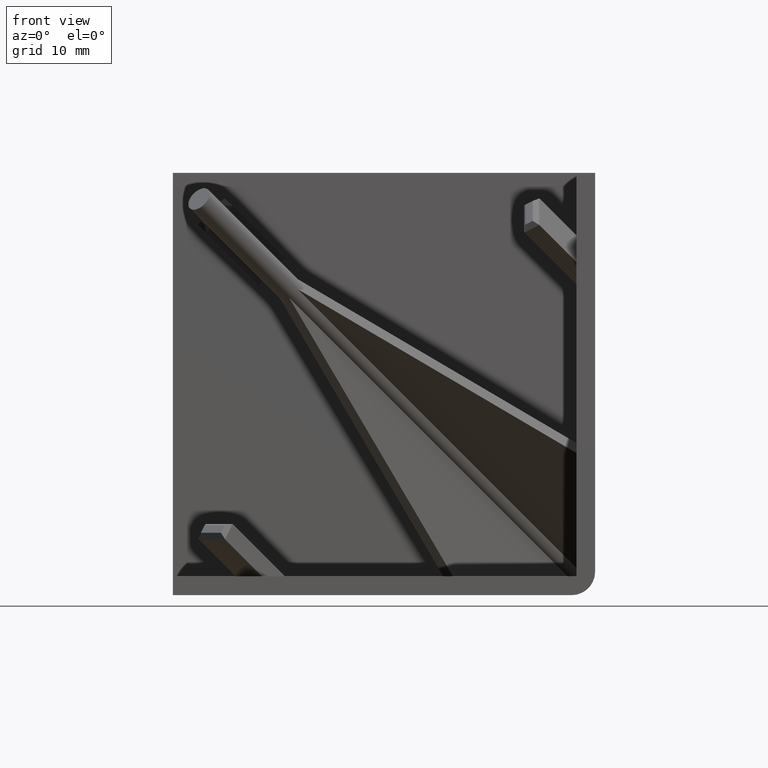
[diagram: clean part render]
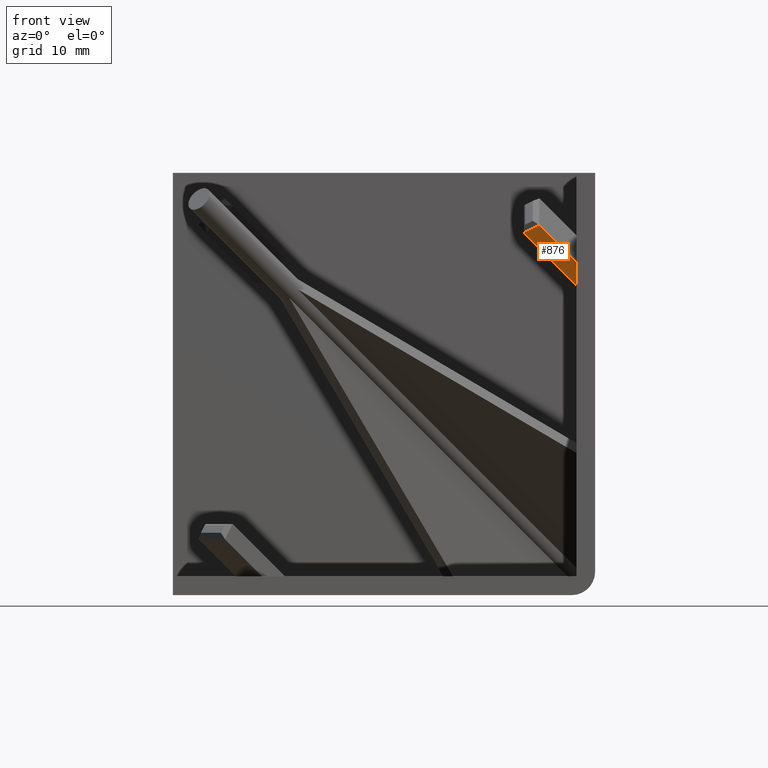
[diagram: same view with one face highlighted and labeled with its STEP entity id]
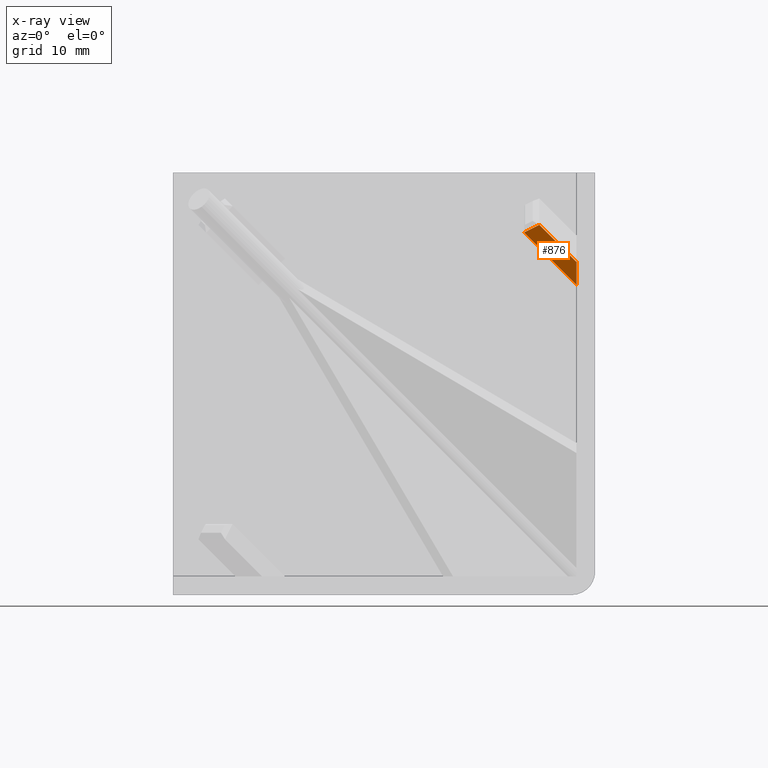
[diagram: x-ray of the same camera — body ghosted, the highlighted face saturated]
A machine part, front view. The second image highlights one B-rep face of the part: STEP entity #876.
The next image is the same camera in x-ray: the body ghosted, the highlighted face saturated — about 0% of this face is hidden behind the body in this view.
In plain terms, the highlighted planar face has unit normal (-0, -0.7071, -0.7071).
Its self-contained STEP definition (entity closure, byte-faithful):
#41=PLANE('',#967);
#92=FACE_OUTER_BOUND('',#146,.T.);
#146=EDGE_LOOP('',(#749,#750,#751,#752));
#216=LINE('',#1340,#322);
#237=LINE('',#1393,#343);
#240=LINE('',#1400,#346);
#242=LINE('',#1403,#348);
#322=VECTOR('',#1072,1000.);
#343=VECTOR('',#1137,1000.);
#346=VECTOR('',#1144,1000.);
#348=VECTOR('',#1148,1000.);
#442=VERTEX_POINT('',#1337);
#443=VERTEX_POINT('',#1339);
#453=VERTEX_POINT('',#1391);
#455=VERTEX_POINT('',#1399);
#528=EDGE_CURVE('',#442,#443,#216,.T.);
#553=EDGE_CURVE('',#442,#453,#237,.T.);
#556=EDGE_CURVE('',#443,#455,#240,.T.);
#558=EDGE_CURVE('',#453,#455,#242,.T.);
#749=ORIENTED_EDGE('',*,*,#553,.T.);
#750=ORIENTED_EDGE('',*,*,#558,.T.);
#751=ORIENTED_EDGE('',*,*,#556,.F.);
#752=ORIENTED_EDGE('',*,*,#528,.F.);
#876=ADVANCED_FACE('',(#92),#41,.T.);
#967=AXIS2_PLACEMENT_3D('',#1402,#1146,#1147);
#1072=DIRECTION('',(-1.14105556590391E-16,0.707106781186548,-0.707106781186547));
#1137=DIRECTION('',(-0.577350269189626,-0.577350269189626,0.577350269189626));
#1144=DIRECTION('',(-0.577350269189626,-0.577350269189626,0.577350269189626));
#1146=DIRECTION('center_axis',(-8.86169898561817E-16,-0.707106781186547,
-0.707106781186548));
#1147=DIRECTION('ref_axis',(0.,0.707106781186548,-0.707106781186547));
#1148=DIRECTION('',(-0.816496580927726,0.408248290463864,-0.408248290463862));
#1337=CARTESIAN_POINT('',(42.9999999999899,6.68055760297648,-9.50898472771655));
#1339=CARTESIAN_POINT('',(43.,9.13004734561165,-11.9584744704184));
#1340=CARTESIAN_POINT('',(42.9999999999495,499963.680557604,-499966.508984727));
#1391=CARTESIAN_POINT('',(39.0468615627242,2.72741916575114,-5.5558462904628));
#1393=CARTESIAN_POINT('',(500000.,499963.680557603,-499966.508984728));
#1399=CARTESIAN_POINT('',(37.4138684008472,3.5439157466044,-6.37234287131605));
#1400=CARTESIAN_POINT('',(499998.367006838,499964.497054184,-499967.325481309));
#1402=CARTESIAN_POINT('Origin',(500000.,499963.680557603,-499966.508984728));
#1403=CARTESIAN_POINT('',(37.4138684009801,3.54391574670512,-6.37234287150093));